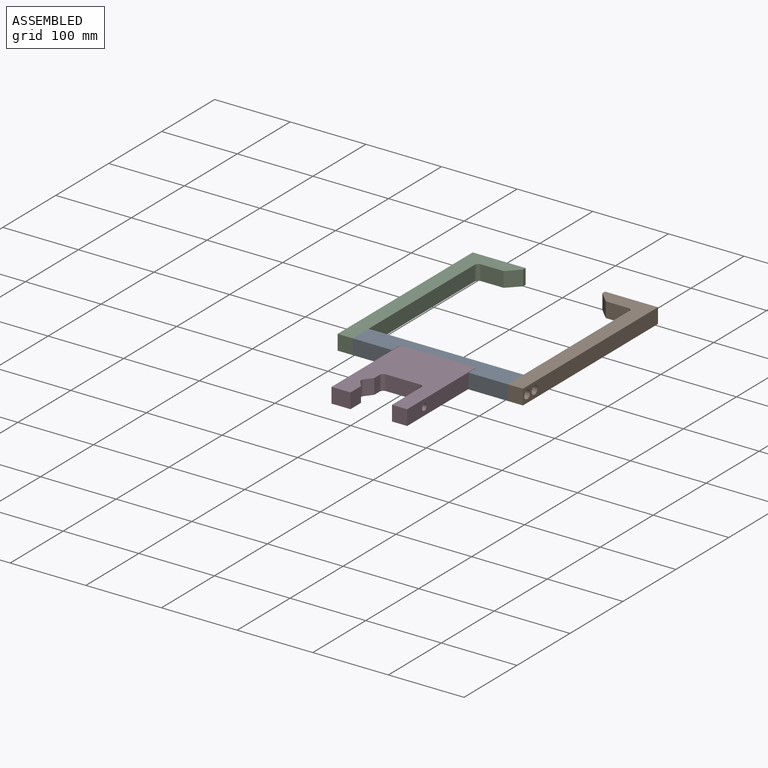
[diagram: assembled view]
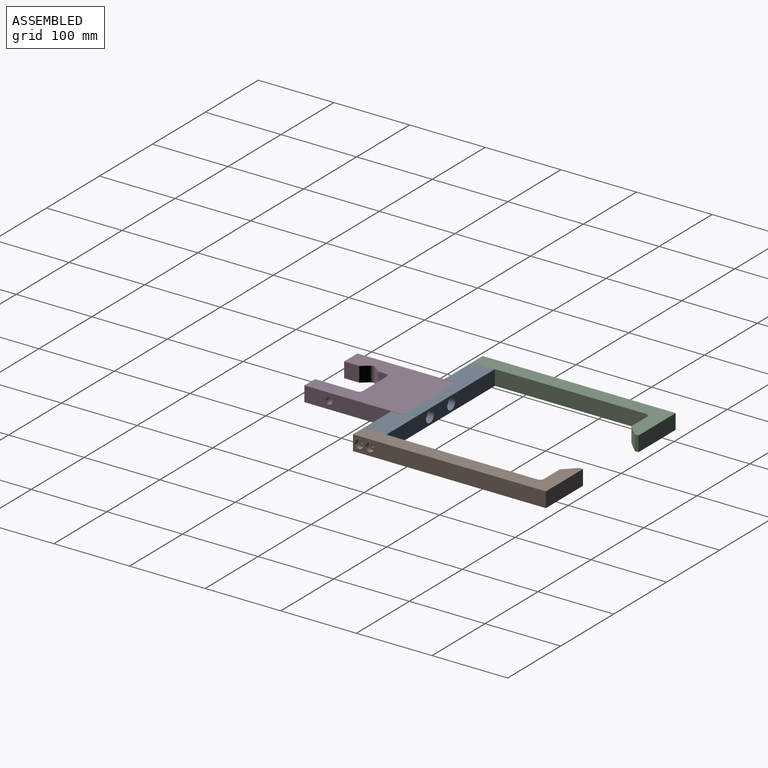
[diagram: assembled view, second angle]
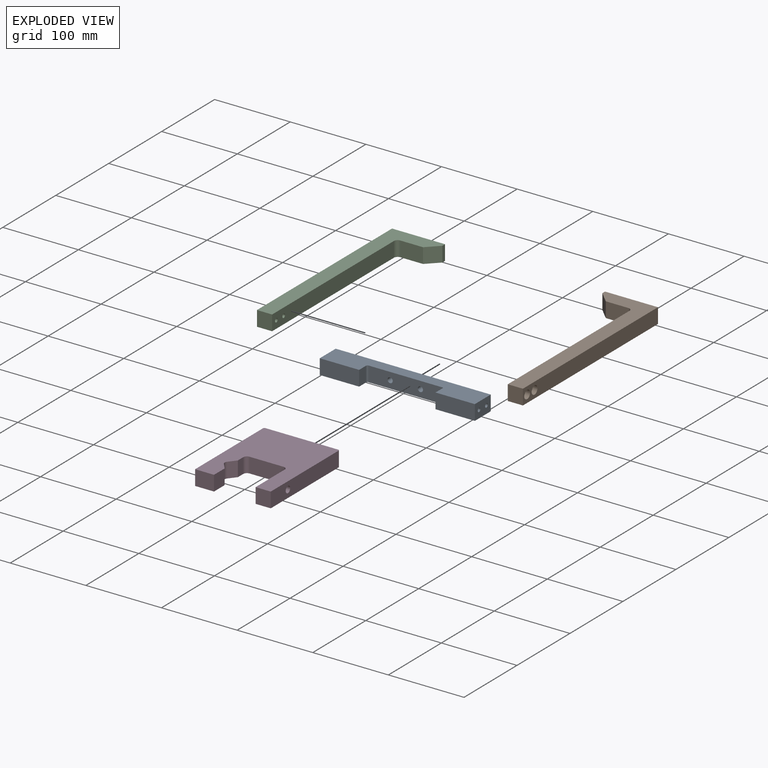
[diagram: exploded view]
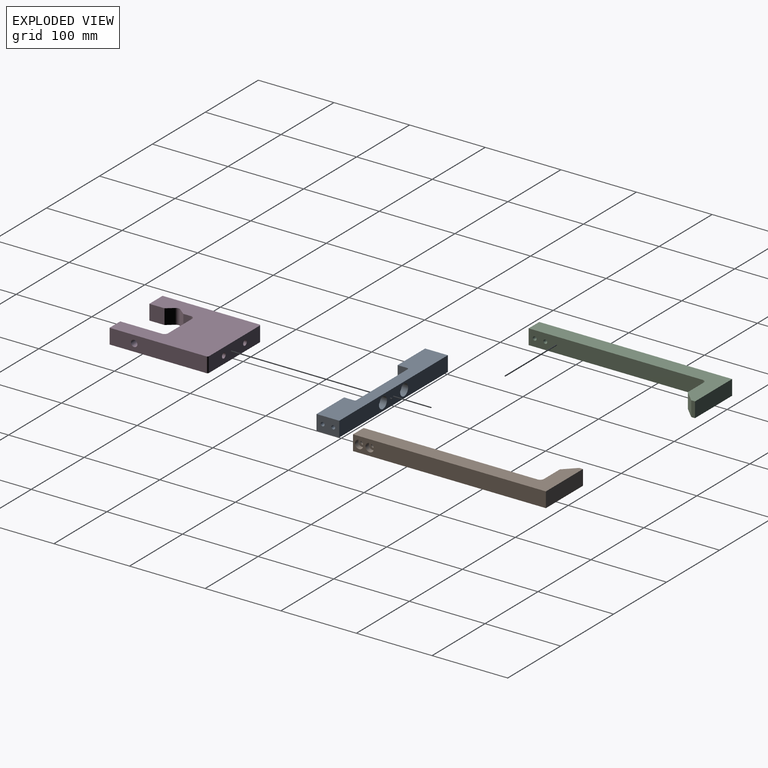
[diagram: exploded view, second angle]
ASSEMBLY  parts=4 mates=4
PART A: 26 faces, bbox 205x30x20 mm
  f0: plane 52x20mm, normal (0,-1,0), area 1040mm2, adj f2,f4,f6,f15
  f1: plane 52x20mm, normal (0,-1,0), area 1040mm2, adj f2,f5,f6,f16
  f2: plane 205x30mm, normal (0,0,1), area 4636.7mm2, adj f0,f1,f3,f4,f5,f15,f16,f17
  f3: plane 205x20mm, normal (0,1,0), area 3746.6mm2, adj f2,f4,f5,f6,f20,f23
  f4: plane 30x20mm, normal (-1,0,0), area 560.7mm2, adj f0,f2,f3,f6,f8,f10
  f5: plane 30x20mm, normal (1,0,0), area 560.7mm2, adj f1,f2,f3,f6,f12,f14
  f6: plane 205x30mm, normal (0,0,-1), area 4636.7mm2, adj f0,f1,f3,f4,f5,f15,f16,f17
  f7: cone r=0mm half-angle=59deg, axis (-1,0,0), area 22.9mm2, adj f8
  f8: cylinder r=2.5mm len=16mm, axis (-1,0,0), area 251.3mm2, adj f4,f7
  f9: cone r=0mm half-angle=59deg, axis (-1,0,0), area 22.9mm2, adj f10
  f10: cylinder r=2.5mm len=16mm, axis (-1,0,0), area 251.3mm2, adj f4,f9
  f11: cone r=0mm half-angle=59deg, axis (1,0,0), area 22.9mm2, adj f12
  f12: cylinder r=2.5mm len=15mm, axis (1,0,0), area 235.6mm2, adj f5,f11
  f13: cone r=0mm half-angle=59deg, axis (1,0,0), area 22.9mm2, adj f14
  f14: cylinder r=2.5mm len=15mm, axis (1,0,0), area 235.6mm2, adj f5,f13
  f15: plane 20x13mm, normal (1,0,0), area 260mm2, adj f0,f2,f6,f24
  f16: plane 20x13mm, normal (-1,0,0), area 260mm2, adj f1,f2,f6,f25
  f17: plane 97x20mm, normal (0,-1,0), area 1867.4mm2, adj f2,f6,f18,f21,f24,f25
  f18: cylinder r=3.4mm len=6.8mm, axis (0,1,0), area 136.7mm2, adj f17,f19
  f19: plane 15x15mm, normal (0,1,0), area 140.4mm2, adj f18,f20
  f20: cylinder r=7.5mm len=15mm, axis (0,1,0), area 405.3mm2, adj f3,f19
  f21: cylinder r=3.4mm len=6.8mm, axis (0,1,0), area 136.7mm2, adj f17,f22
  f22: plane 15x15mm, normal (0,1,0), area 140.4mm2, adj f21,f23
  f23: cylinder r=7.5mm len=15mm, axis (0,1,0), area 405.3mm2, adj f3,f22
  f24: cylinder r=2mm len=20mm, axis (0,0,-1), area 62.8mm2, adj f2,f6,f15,f17
  f25: cylinder r=2mm len=20mm, axis (0,0,1), area 62.8mm2, adj f2,f6,f16,f17
PART B: 16 faces, bbox 70x255x20 mm
  f0: plane 230x20mm, normal (1,0,0), area 4560.7mm2, adj f1,f3,f5,f8,f11,f14
  f1: plane 255x70mm, normal (0,0,1), area 5992.9mm2, adj f0,f2,f4,f5,f6,f7,f14,f15
  f2: plane 255x20mm, normal (-1,0,0), area 4909.9mm2, adj f1,f3,f4,f5,f10,f13
  f3: plane 255x70mm, normal (0,0,-1), area 5992.9mm2, adj f0,f2,f4,f5,f6,f7,f14,f15
  f4: plane 70x20mm, normal (0,-1,0), area 1400mm2, adj f1,f2,f3,f7
  f5: plane 20x20mm, normal (0,1,0), area 400mm2, adj f0,f1,f2,f3
  f6: plane 30x20mm, normal (0,1,0), area 600mm2, adj f1,f3,f14,f15
  f7: plane 20x5mm, normal (1,0,0), area 100mm2, adj f1,f3,f4,f15
  f8: cylinder r=2.5mm len=13.6mm, axis (-1,0,0), area 213.6mm2, adj f0,f9
  f9: plane 11x11mm, normal (-1,0,0), area 75.4mm2, adj f8,f10
  f10: cylinder r=5.5mm len=11mm, axis (-1,0,0), area 221.2mm2, adj f2,f9
  f11: cylinder r=2.5mm len=13.6mm, axis (-1,0,0), area 213.6mm2, adj f0,f12
  f12: plane 11x11mm, normal (-1,0,0), area 75.4mm2, adj f11,f13
  f13: cylinder r=5.5mm len=11mm, axis (-1,0,0), area 221.2mm2, adj f2,f12
  f14: cylinder r=5mm len=20mm, axis (0,0,1), area 157.1mm2, adj f0,f1,f3,f6
  f15: plane 20x15mm, normal (0.71,0.71,0), area 424.3mm2, adj f1,f3,f6,f7
PART C: same geometry as B
PART D: 23 faces, bbox 100x130x20 mm
  f0: plane 20x20mm, normal (0,-1,0), area 400mm2, adj f4,f5,f6,f7
  f1: plane 96x20mm, normal (0,1,0), area 1847.4mm2, adj f5,f6,f14,f16,f18,f19
  f2: plane 128x20mm, normal (-1,0,0), area 2560mm2, adj f3,f5,f6,f18
  f3: plane 25x20mm, normal (0,-1,0), area 500mm2, adj f2,f5,f6,f12
  f4: plane 128x20mm, normal (1,0,0), area 2503.3mm2, adj f0,f5,f6,f17,f19
  f5: plane 130x100mm, normal (0,0,1), area 9587.1mm2, adj f0,f1,f2,f3,f4,f7,f8,f9
  f6: plane 130x100mm, normal (0,0,-1), area 9587.1mm2, adj f0,f1,f2,f3,f4,f7,f8,f9
  f7: plane 55x20mm, normal (-1,0,0), area 1043.3mm2, adj f0,f5,f6,f17,f20
  f8: plane 45x20mm, normal (0,-1,0), area 900mm2, adj f5,f6,f20,f21
  f9: plane 20x10mm, normal (1,0,0), area 200mm2, adj f5,f6,f10,f21
  f10: plane 20x9.38mm, normal (0.78,-0.62,0), area 240.2mm2, adj f5,f6,f9,f22
  f11: plane 20x9.37mm, normal (0.78,0.62,0), area 240.1mm2, adj f5,f6,f12,f22
  f12: plane 20x20mm, normal (1,0,0), area 400mm2, adj f3,f5,f6,f11
  f13: cone r=0mm half-angle=59deg, axis (0,1,0), area 42.4mm2, adj f14
  f14: cylinder r=3.4mm len=26mm, axis (0,1,0), area 555.4mm2, adj f1,f13
  f15: cone r=0mm half-angle=59deg, axis (0,1,0), area 42.4mm2, adj f16
  f16: cylinder r=3.4mm len=26mm, axis (0,1,0), area 555.4mm2, adj f1,f15
  f17: cylinder r=4.25mm len=20mm, axis (1,0,0), area 534.1mm2, adj f4,f7
  f18: cylinder r=2mm len=20mm, axis (0,0,1), area 62.8mm2, adj f1,f2,f5,f6
  f19: cylinder r=2mm len=20mm, axis (0,0,-1), area 62.8mm2, adj f1,f4,f5,f6
  f20: cylinder r=5mm len=20mm, axis (0,0,-1), area 157.1mm2, adj f5,f6,f7,f8
  f21: cylinder r=5mm len=20mm, axis (0,0,-1), area 157.1mm2, adj f5,f6,f8,f9
  f22: cylinder r=5mm len=20mm, axis (0,0,1), area 134.9mm2, adj f5,f6,f10,f11
PLACE A t=(-5.17,9.56,-38.72)mm fixed
PLACE B rot(axis=(0,0,1),180deg) t=(129.65,37.49,-22.95)mm
PLACE C rot(axis=(1,0,0),180deg) t=(-111.65,37.49,-34.5)mm fixed
PLACE D t=(-145.06,26.64,-38.72)mm
MATE slider A.f18 <-> D.f15  axis (0,-1,0) through (29,52.49,-28.72)mm
MATE slider C.f11 <-> A.f7  axis (-1,0,0) through (-93.5,45.49,-28.72)mm
MATE slider B.f11 <-> A.f7  axis (-1,0,0) through (111.5,45.49,-28.72)mm
MATE fastened B.f8 <-> A.f9  axis (-1,0,0) through (111.5,59.49,-28.72)mm
